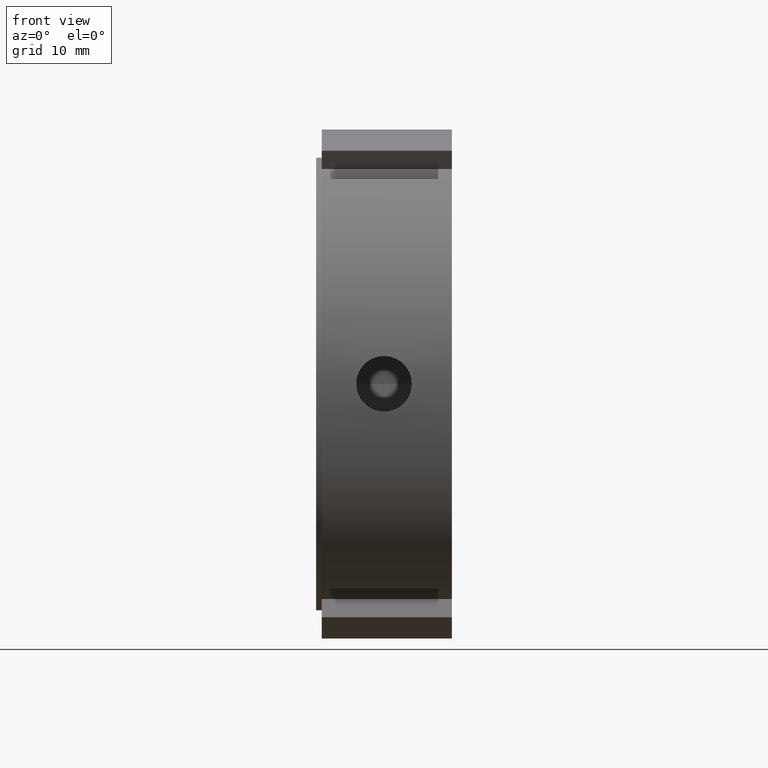
[diagram: clean part render]
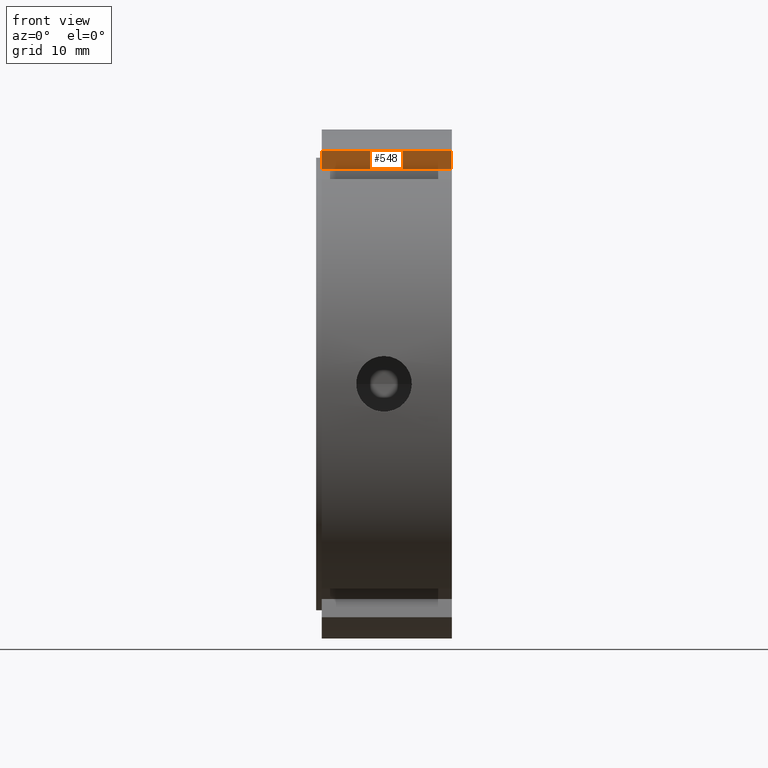
[diagram: same view with one face highlighted and labeled with its STEP entity id]
A machine part, front view. The second image highlights one B-rep face of the part: STEP entity #548.
In plain terms, the highlighted planar face has unit normal (0, 0.866, 0.5).
Its self-contained STEP definition (entity closure, byte-faithful):
#303=CARTESIAN_POINT('',(11.999999999999996,-9.015276378037846,20.614916731037084));
#304=VERTEX_POINT('',#303);
#312=CARTESIAN_POINT('',(11.999999999999996,-8.084936490538899,19.003520777580995));
#313=VERTEX_POINT('',#312);
#314=CARTESIAN_POINT('',(11.999999999999996,-9.015276378037848,20.614916731037088));
#315=DIRECTION('',(0.0,0.499999999999999,-0.866025403784439));
#316=VECTOR('',#315,1.860679774997897);
#317=LINE('',#314,#316);
#318=EDGE_CURVE('',#304,#313,#317,.T.);
#518=CARTESIAN_POINT('',(11.999999999999996,-8.084936490538899,19.003520777580995));
#519=DIRECTION('',(0.0,0.866025403784439,0.500000000000000));
#520=DIRECTION('',(-1.0,0.0,0.0));
#521=AXIS2_PLACEMENT_3D('',#518,#519,#520);
#522=PLANE('',#521);
#523=CARTESIAN_POINT('',(0.499999999999994,-8.084936490538899,19.003520777580995));
#524=VERTEX_POINT('',#523);
#525=CARTESIAN_POINT('',(0.499999999999994,-9.015276378037845,20.614916731037081));
#526=VERTEX_POINT('',#525);
#527=CARTESIAN_POINT('',(0.499999999999995,-8.084936490538899,19.003520777580995));
#528=DIRECTION('',(0.0,-0.499999999999999,0.866025403784439));
#529=VECTOR('',#528,1.860679774997892);
#530=LINE('',#527,#529);
#531=EDGE_CURVE('',#524,#526,#530,.T.);
#532=ORIENTED_EDGE('',*,*,#531,.F.);
#533=CARTESIAN_POINT('',(11.999999999999996,-8.084936490538899,19.003520777580995));
#534=DIRECTION('',(-1.0,0.0,0.0));
#535=VECTOR('',#534,11.500000000000004);
#536=LINE('',#533,#535);
#537=EDGE_CURVE('',#313,#524,#536,.T.);
#538=ORIENTED_EDGE('',*,*,#537,.F.);
#539=ORIENTED_EDGE('',*,*,#318,.F.);
#540=CARTESIAN_POINT('',(0.499999999999994,-9.015276378037845,20.614916731037081));
#541=DIRECTION('',(1.0,0.0,0.0));
#542=VECTOR('',#541,11.500000000000004);
#543=LINE('',#540,#542);
#544=EDGE_CURVE('',#526,#304,#543,.T.);
#545=ORIENTED_EDGE('',*,*,#544,.F.);
#546=EDGE_LOOP('',(#532,#538,#539,#545));
#547=FACE_OUTER_BOUND('',#546,.T.);
#548=ADVANCED_FACE('',(#547),#522,.F.);